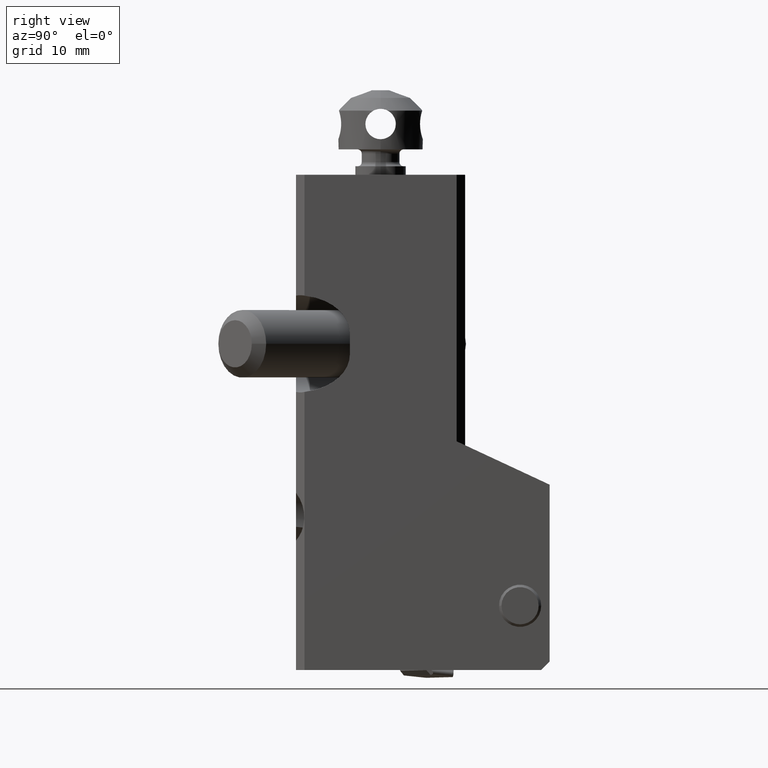
[diagram: clean part render]
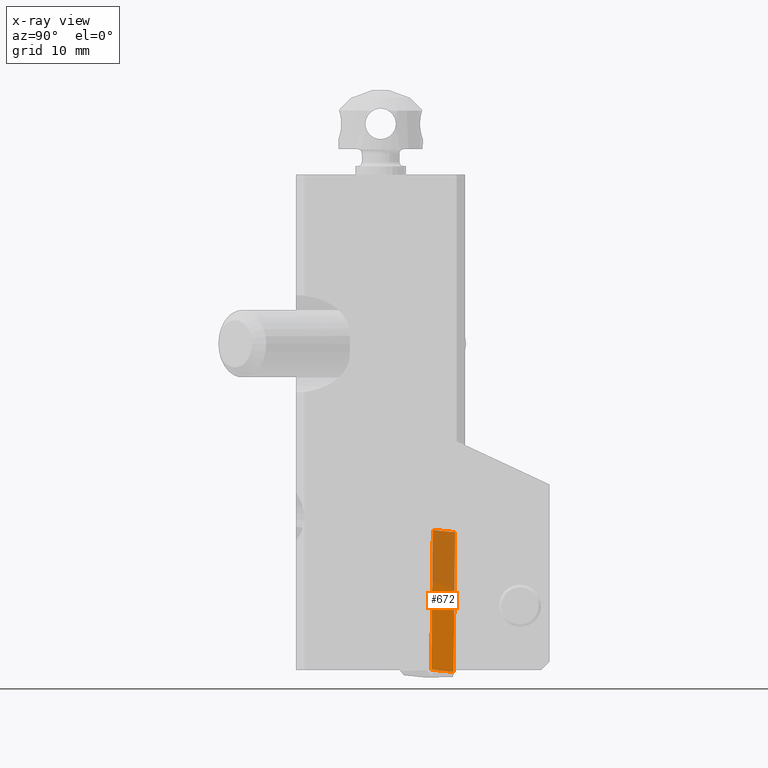
[diagram: x-ray — body ghosted, one internal face saturated and labeled with its STEP entity id]
A machine part, right view, then the same camera in x-ray: the body is ghosted and one INTERNAL B-rep face — a face not visible from any outside direction — is saturated and labeled: STEP entity #672.
In plain terms, the highlighted planar face has unit normal (0.8451, 0.1865, 0.5011).
Its self-contained STEP definition (entity closure, byte-faithful):
#672=ADVANCED_FACE('',(#967),#789,.T.);
#789=PLANE('',#4360);
#967=FACE_OUTER_BOUND('',#1194,.T.);
#1194=EDGE_LOOP('',(#2210,#2211,#2212,#2213));
#2210=ORIENTED_EDGE('',*,*,#3220,.T.);
#2211=ORIENTED_EDGE('',*,*,#3217,.T.);
#2212=ORIENTED_EDGE('',*,*,#3221,.T.);
#2213=ORIENTED_EDGE('',*,*,#3222,.T.);
#2686=VERTEX_POINT('',#7974);
#2691=VERTEX_POINT('',#7984);
#2694=VERTEX_POINT('',#7992);
#2695=VERTEX_POINT('',#7994);
#3217=EDGE_CURVE('',#2686,#2691,#3540,.T.);
#3220=EDGE_CURVE('',#2694,#2686,#3541,.T.);
#3221=EDGE_CURVE('',#2691,#2695,#3542,.T.);
#3222=EDGE_CURVE('',#2695,#2694,#3543,.T.);
#3540=LINE('',#7985,#3821);
#3541=LINE('',#7991,#3822);
#3542=LINE('',#7993,#3823);
#3543=LINE('',#7995,#3824);
#3821=VECTOR('',#5395,1.);
#3822=VECTOR('',#5402,1.);
#3823=VECTOR('',#5403,1.);
#3824=VECTOR('',#5404,1.);
#4360=AXIS2_PLACEMENT_3D('',#7996,#5405,#5406);
#5395=DIRECTION('',(-0.511498870221604,0.00929563534606907,0.859233668407806));
#5402=DIRECTION('',(-0.155598304244398,0.982409029106688,-0.103255349720599));
#5403=DIRECTION('',(0.155598304269102,-0.98240902910701,0.103255349680301));
#5404=DIRECTION('',(0.511498870221487,-0.00929563534587776,-0.859233668407878));
#5405=DIRECTION('',(0.845078738034792,0.186510296480398,0.501054723386895));
#5406=DIRECTION('',(-0.511498870221601,0.009295635345749,0.859233668407811));
#7974=CARTESIAN_POINT('',(-3.451116764739,18.63193308372,-58.82438213575));
#7984=CARTESIAN_POINT('',(-13.28507331145,18.81064877478,-42.30495843706));
#7985=CARTESIAN_POINT('',(-3.451116764739,18.63193308372,-58.82438213575));
#7991=CARTESIAN_POINT('',(-3.034113309365,15.99907688572,-58.5476577985));
#7992=CARTESIAN_POINT('',(-3.0341133093678,15.9990768857175,-58.5476577984993));
#7993=CARTESIAN_POINT('',(-13.28507331145,18.81064877478,-42.30495843706));
#7994=CARTESIAN_POINT('',(-12.86806985601,16.17779257677,-42.02823409992));
#7995=CARTESIAN_POINT('',(-12.86806985601,16.17779257677,-42.02823409992));
#7996=CARTESIAN_POINT('',(-8.159593310421,17.40486283025,-50.42630811775));